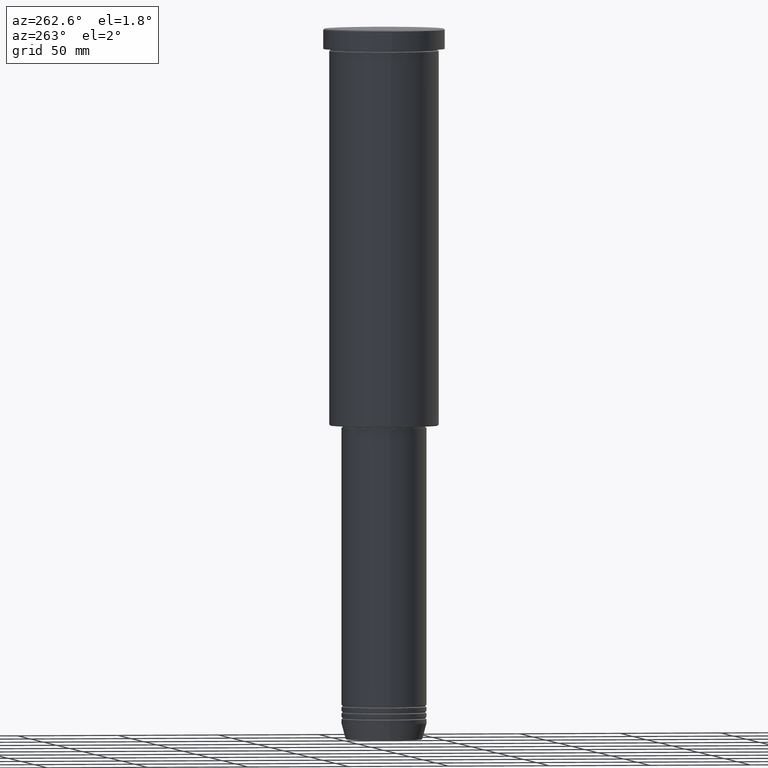
[diagram: clean part render]
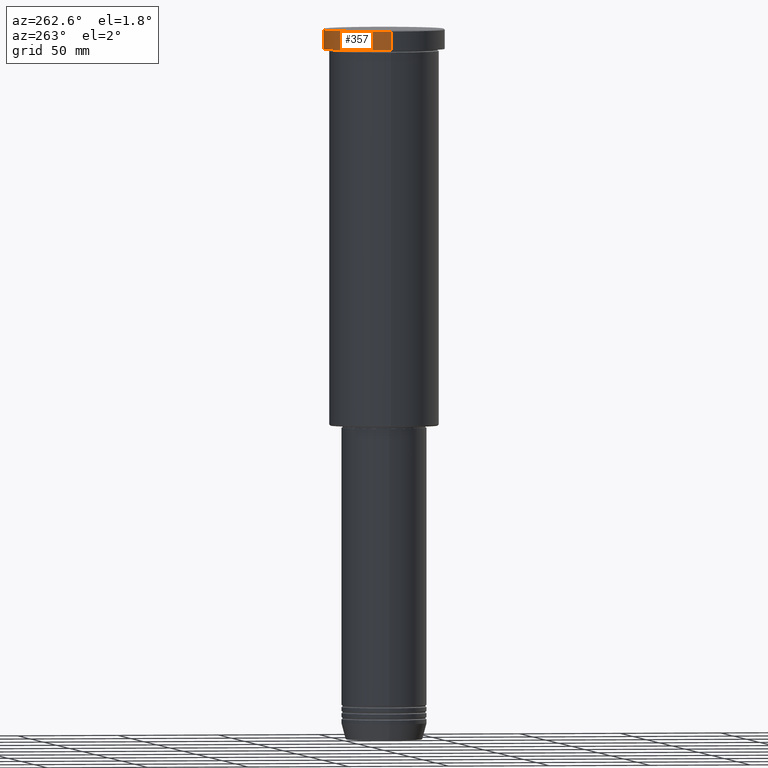
[diagram: same view with one face highlighted and labeled with its STEP entity id]
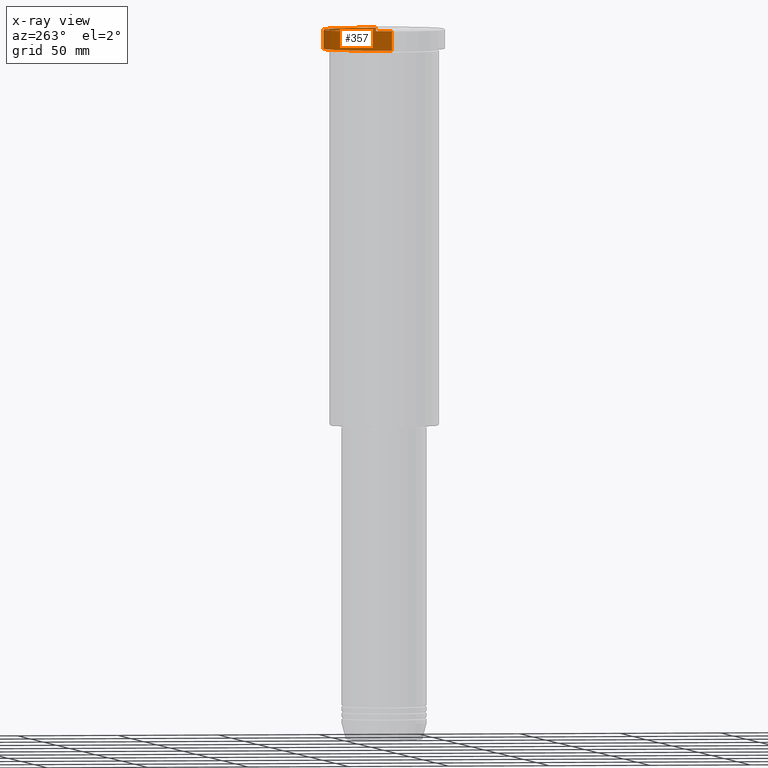
[diagram: x-ray of the same camera — body ghosted, the highlighted face saturated]
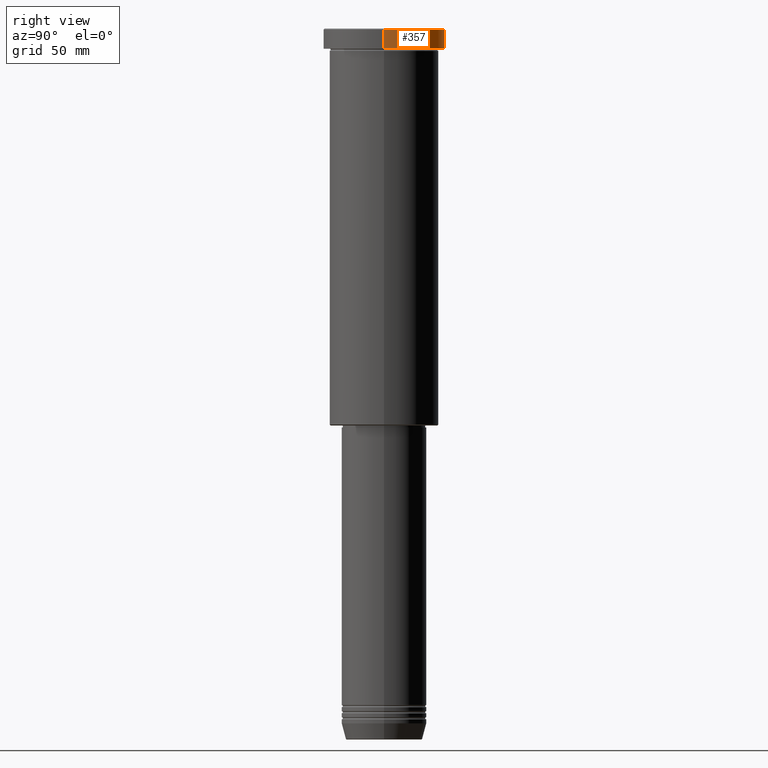
[diagram: same view with one face highlighted and labeled with its STEP entity id]
A machine part, auxiliary view. The second image highlights one B-rep face of the part: STEP entity #357.
The next image is the same camera in x-ray: the body ghosted, the highlighted face saturated — about 5% of this face is hidden behind the body in this view.
A second angle (right view) of the same face is appended — the face is thin or edge-on in the first view.
In plain terms, the highlighted cylindrical surface (partial cylindrical patch) has radius 30 mm, axis along (-0, -0, 1).
Its self-contained STEP definition (entity closure, byte-faithful):
#41 = CARTESIAN_POINT ( 'NONE',  ( -30.00000000000000000, 3.673940397442059178E-15, 0.000000000000000000 ) ) ;
#56 = VECTOR ( 'NONE', #1062, 1000.000000000000000 ) ;
#81 = VERTEX_POINT ( 'NONE', #443 ) ;
#102 = DIRECTION ( 'NONE',  ( 1.000000000000000000, 0.000000000000000000, 0.000000000000000000 ) ) ;
#153 = FACE_OUTER_BOUND ( 'NONE', #1157, .T. ) ;
#174 = VERTEX_POINT ( 'NONE', #941 ) ;
#212 = CARTESIAN_POINT ( 'NONE',  ( 30.00000000000000000, 0.000000000000000000, -0.5000000000000073275 ) ) ;
#255 = DIRECTION ( 'NONE',  ( 1.000000000000000000, 0.000000000000000000, 0.000000000000000000 ) ) ;
#261 = EDGE_CURVE ( 'NONE', #324, #174, #1047, .T. ) ;
#265 = CIRCLE ( 'NONE', #744, 30.00000000000000000 ) ;
#324 = VERTEX_POINT ( 'NONE', #1137 ) ;
#357 = ADVANCED_FACE ( 'NONE', ( #153 ), #880, .T. ) ;
#442 = ORIENTED_EDGE ( 'NONE', *, *, #758, .F. ) ;
#443 = CARTESIAN_POINT ( 'NONE',  ( -30.00000000000000000, 3.673940397442059178E-15, -0.5000000000000073275 ) ) ;
#598 = CARTESIAN_POINT ( 'NONE',  ( 0.000000000000000000, 0.000000000000000000, 0.000000000000000000 ) ) ;
#608 = DIRECTION ( 'NONE',  ( -0.000000000000000000, -0.000000000000000000, 1.000000000000000000 ) ) ;
#616 = VECTOR ( 'NONE', #780, 1000.000000000000000 ) ;
#674 = CARTESIAN_POINT ( 'NONE',  ( 0.000000000000000000, 0.000000000000000000, -9.999999999999992895 ) ) ;
#689 = EDGE_CURVE ( 'NONE', #174, #81, #1128, .T. ) ;
#699 = ORIENTED_EDGE ( 'NONE', *, *, #855, .T. ) ;
#744 = AXIS2_PLACEMENT_3D ( 'NONE', #791, #1072, #1166 ) ;
#758 = EDGE_CURVE ( 'NONE', #324, #1010, #1051, .T. ) ;
#773 = CARTESIAN_POINT ( 'NONE',  ( 30.00000000000000000, 0.000000000000000000, 0.000000000000000000 ) ) ;
#780 = DIRECTION ( 'NONE',  ( -0.000000000000000000, -0.000000000000000000, 1.000000000000000000 ) ) ;
#791 = CARTESIAN_POINT ( 'NONE',  ( 0.000000000000000000, 0.000000000000000000, -0.5000000000000073275 ) ) ;
#814 = AXIS2_PLACEMENT_3D ( 'NONE', #598, #608, #255 ) ;
#830 = ORIENTED_EDGE ( 'NONE', *, *, #689, .T. ) ;
#855 = EDGE_CURVE ( 'NONE', #81, #1010, #265, .T. ) ;
#858 = ORIENTED_EDGE ( 'NONE', *, *, #261, .T. ) ;
#880 = CYLINDRICAL_SURFACE ( 'NONE', #814, 30.00000000000000000 ) ;
#941 = CARTESIAN_POINT ( 'NONE',  ( -30.00000000000000000, 3.673940397442059178E-15, -9.999999999999992895 ) ) ;
#951 = AXIS2_PLACEMENT_3D ( 'NONE', #674, #1036, #102 ) ;
#1010 = VERTEX_POINT ( 'NONE', #212 ) ;
#1036 = DIRECTION ( 'NONE',  ( -0.000000000000000000, -0.000000000000000000, 1.000000000000000000 ) ) ;
#1047 = CIRCLE ( 'NONE', #951, 30.00000000000000000 ) ;
#1051 = LINE ( 'NONE', #773, #56 ) ;
#1062 = DIRECTION ( 'NONE',  ( -0.000000000000000000, -0.000000000000000000, 1.000000000000000000 ) ) ;
#1072 = DIRECTION ( 'NONE',  ( 0.000000000000000000, 0.000000000000000000, -1.000000000000000000 ) ) ;
#1128 = LINE ( 'NONE', #41, #616 ) ;
#1137 = CARTESIAN_POINT ( 'NONE',  ( 30.00000000000000000, 0.000000000000000000, -9.999999999999992895 ) ) ;
#1157 = EDGE_LOOP ( 'NONE', ( #858, #830, #699, #442 ) ) ;
#1166 = DIRECTION ( 'NONE',  ( 1.000000000000000000, 0.000000000000000000, 0.000000000000000000 ) ) ;